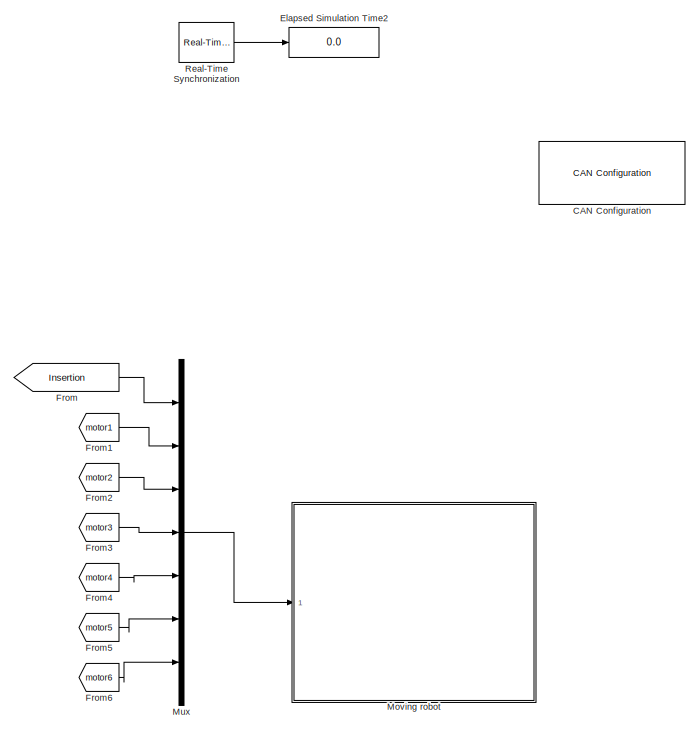
[diagram: root canvas - part 1/3, top right region]
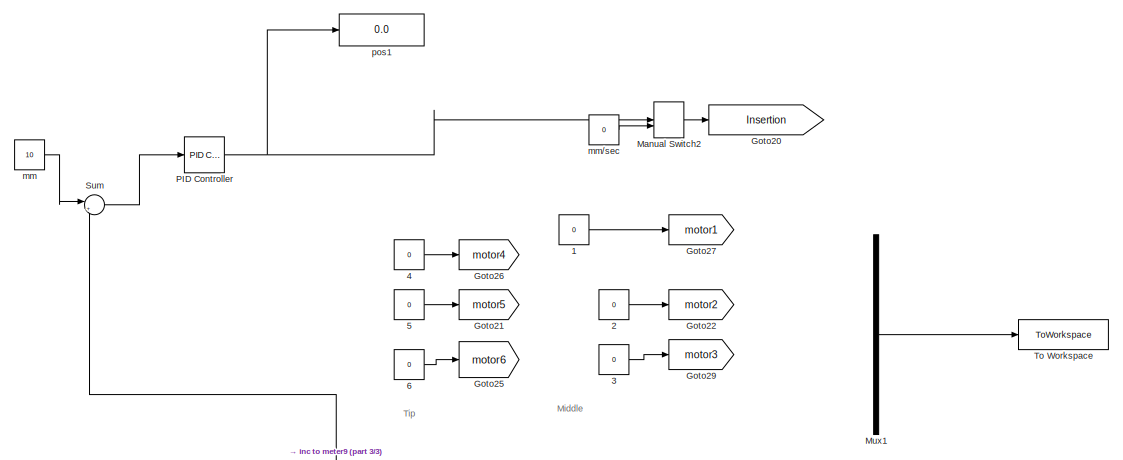
[diagram: root canvas - part 2/3, central region]
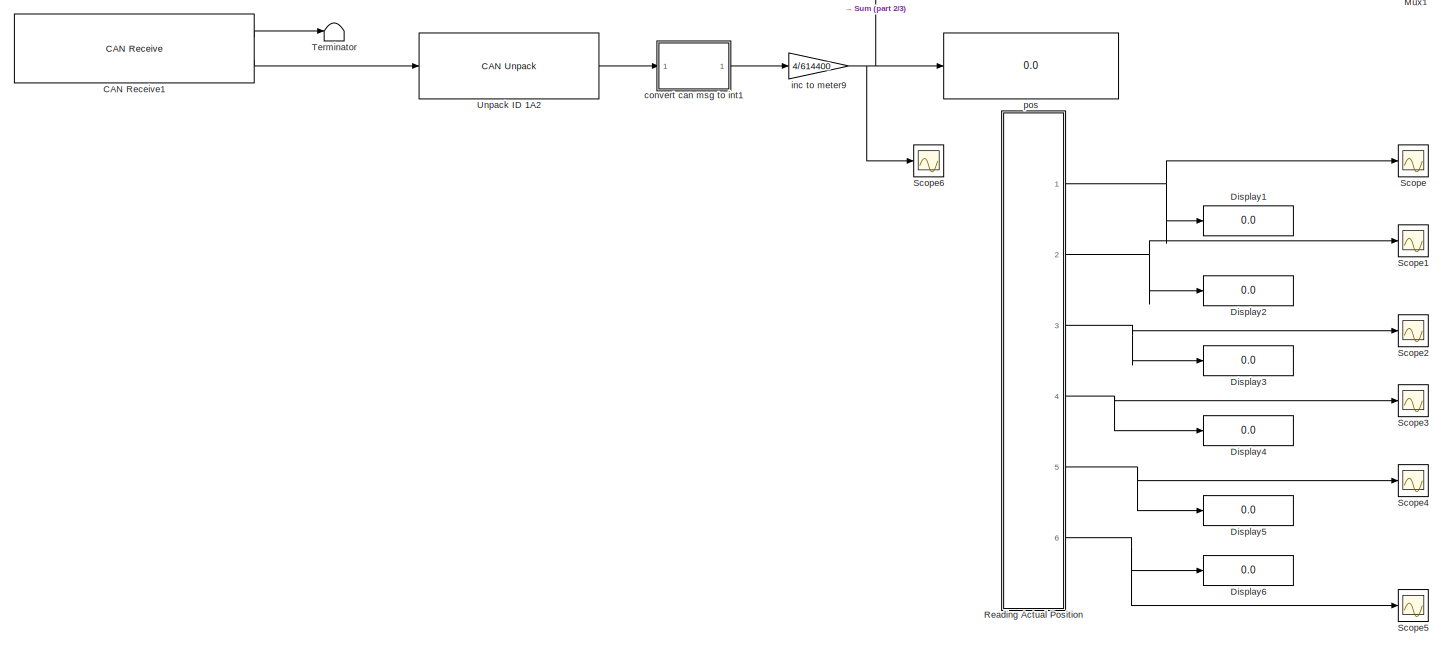
[diagram: root canvas - part 3/3, bottom left region]
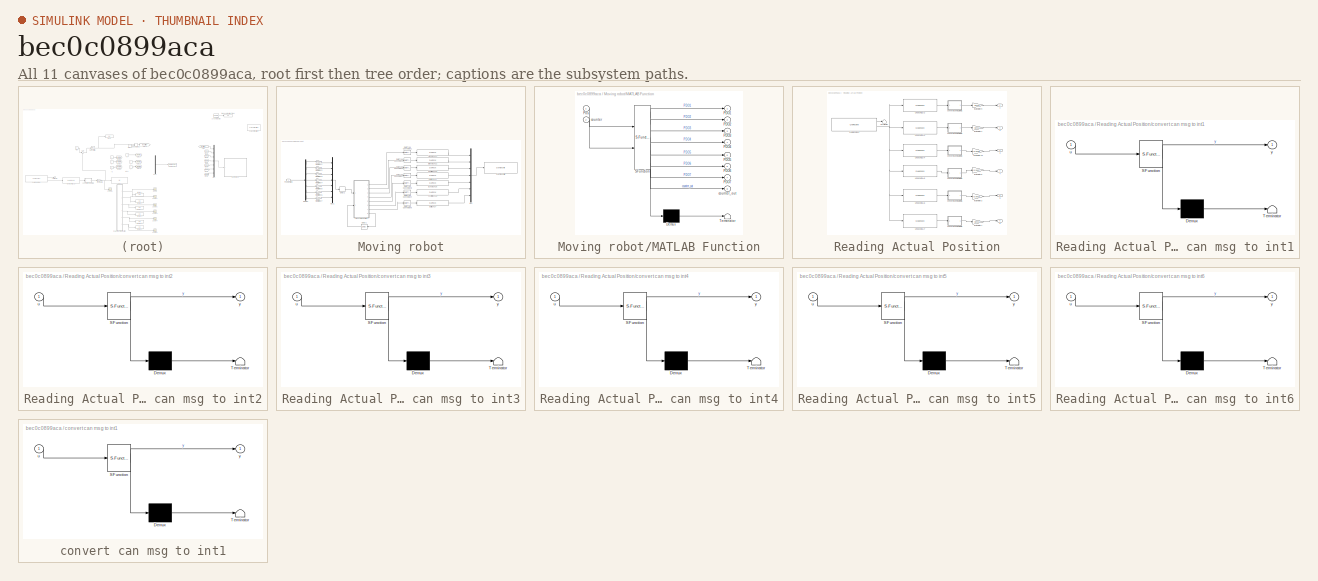
[diagram: thumbnail index - all 11 canvases of the model, root first then tree order]
MODEL slx_bec0c0899aca
KIND model
CONFIG AbsTol = auto
CONFIG EnableMultiTasking = off
CONFIG FixedStep = 0.01
CONFIG MaxStep = auto
CONFIG MinStep = auto
CONFIG RelTol = 1e-3
CONFIG SampleTimeConstraint = Unconstrained
CONFIG Solver = FixedStepAuto
CONFIG SolverName = FixedStepAuto
CONFIG StartTime = 0.0
CONFIG StopTime = inf
BLOCK [Constant] 1
  Value = 0
BLOCK [Constant] 2
  Value = 0
BLOCK [Constant] 3
  Value = 0
BLOCK [Constant] 4
  Value = 0
BLOCK [Constant] 5
  Value = 0
BLOCK [Constant] 6
  Value = 0
BLOCK [Reference] CAN Configuration  REF=canlib/CAN Configuration
  Ports = []
  SourceBlock = canlib/CAN Configuration
  SourceProductBaseCode = VN
  SourceProductName = Vehicle Network Toolbox
  SourceType = CAN Configuration
BLOCK [Reference] CAN Receive1  REF=canlib/CAN Receive
  Ports = [0, 2]
  SourceBlock = canlib/CAN Receive
  SourceProductBaseCode = VN
  SourceProductName = Vehicle Network Toolbox
  SourceType = CAN Receive
BLOCK [Display] Display1
  Decimation = 1
  Ports = [1]
BLOCK [Display] Display2
  Decimation = 1
  Ports = [1]
BLOCK [Display] Display3
  Decimation = 1
  Ports = [1]
BLOCK [Display] Display4
  Decimation = 1
  Ports = [1]
BLOCK [Display] Display5
  Decimation = 1
  Ports = [1]
BLOCK [Display] Display6
  Decimation = 1
  Ports = [1]
BLOCK [Display] Elapsed Simulation Time2
  Decimation = 2
  Ports = [1]
BLOCK [From] From
  GotoTag = Insertion
BLOCK [From] From1
  GotoTag = motor1
BLOCK [From] From2
  GotoTag = motor2
BLOCK [From] From3
  GotoTag = motor3
BLOCK [From] From4
  GotoTag = motor4
BLOCK [From] From5
  GotoTag = motor5
BLOCK [From] From6
  GotoTag = motor6
BLOCK [Goto] Goto20
  GotoTag = Insertion
BLOCK [Goto] Goto21
  GotoTag = motor5
BLOCK [Goto] Goto22
  GotoTag = motor2
BLOCK [Goto] Goto25
  GotoTag = motor6
BLOCK [Goto] Goto26
  GotoTag = motor4
BLOCK [Goto] Goto27
  GotoTag = motor1
BLOCK [Goto] Goto29
  GotoTag = motor3
BLOCK [ManualSwitch] Manual Switch2
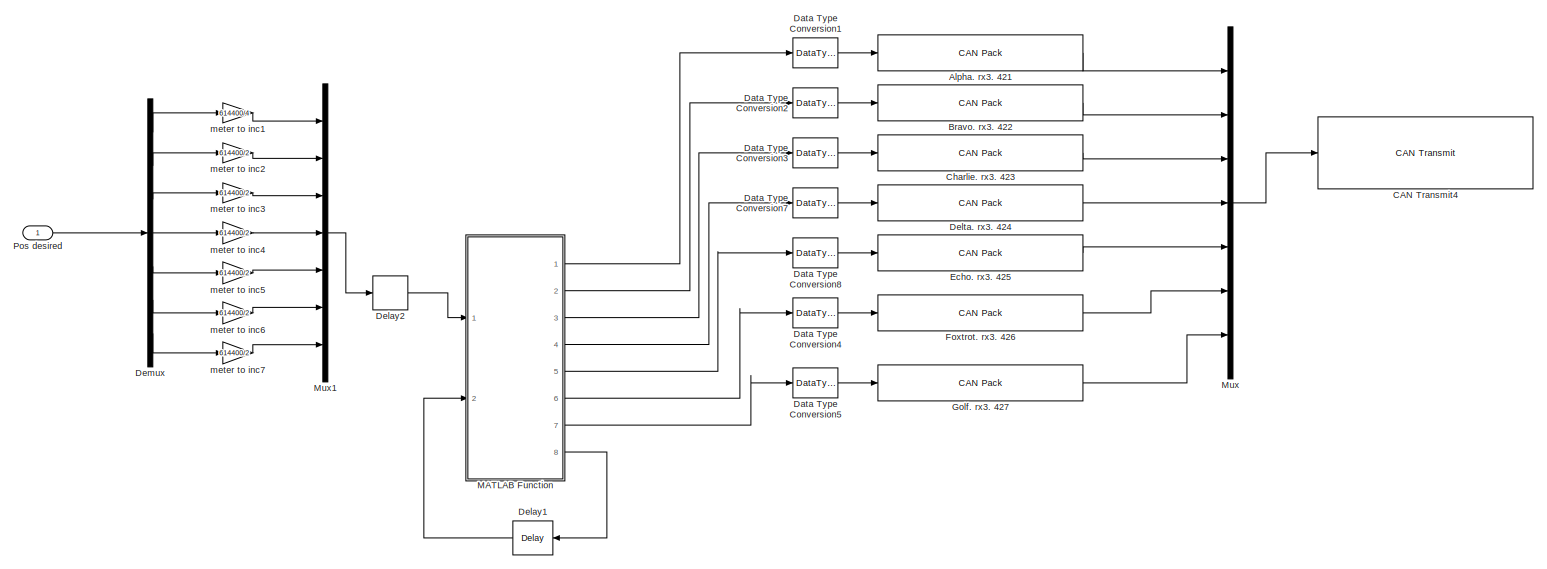
[diagram: Moving robot - part 1/1, most of the canvas]
BLOCK [SubSystem] Moving robot
  Ports = [1]
  RequestExecContextInheritance = off
BLOCK [Reference] Moving robot/Alpha. rx3. 421  REF=canmsglib/CAN Pack
  Ports = [1, 1]
  SourceBlock = canmsglib/CAN Pack
  SourceProductBaseCode = XP
  SourceProductName = Simulink Real-Time
  SourceType = CAN Pack
BLOCK [Reference] Moving robot/Bravo. rx3. 422  REF=canmsglib/CAN Pack
  Ports = [1, 1]
  SourceBlock = canmsglib/CAN Pack
  SourceProductBaseCode = XP
  SourceProductName = Simulink Real-Time
  SourceType = CAN Pack
BLOCK [Reference] Moving robot/CAN Transmit4  REF=canlib/CAN Transmit
  Ports = [1]
  SourceBlock = canlib/CAN Transmit
  SourceProductBaseCode = VN
  SourceProductName = Vehicle Network Toolbox
  SourceType = CAN Transmit
BLOCK [Reference] Moving robot/Charlie. rx3. 423  REF=canmsglib/CAN Pack
  Ports = [1, 1]
  SourceBlock = canmsglib/CAN Pack
  SourceProductBaseCode = XP
  SourceProductName = Simulink Real-Time
  SourceType = CAN Pack
BLOCK [DataTypeConversion] Moving robot/Data Type Conversion1
  RndMeth = Floor
  SaturateOnIntegerOverflow = off
BLOCK [DataTypeConversion] Moving robot/Data Type Conversion2
  RndMeth = Floor
  SaturateOnIntegerOverflow = off
BLOCK [DataTypeConversion] Moving robot/Data Type Conversion3
  RndMeth = Floor
  SaturateOnIntegerOverflow = off
BLOCK [DataTypeConversion] Moving robot/Data Type Conversion4
  RndMeth = Floor
  SaturateOnIntegerOverflow = off
BLOCK [DataTypeConversion] Moving robot/Data Type Conversion5
  RndMeth = Floor
  SaturateOnIntegerOverflow = off
BLOCK [DataTypeConversion] Moving robot/Data Type Conversion7
  RndMeth = Floor
  SaturateOnIntegerOverflow = off
BLOCK [DataTypeConversion] Moving robot/Data Type Conversion8
  RndMeth = Floor
  SaturateOnIntegerOverflow = off
BLOCK [Delay] Moving robot/Delay1
  DelayLength = 1
  InitialCondition = 0
  InputPortMap = u0
  Ports = [1, 1]
BLOCK [Delay] Moving robot/Delay2
  DelayLength = 1
  InitialCondition = [ 0 0 0 0 0 0 0]
  InputPortMap = u0
  Ports = [1, 1]
BLOCK [Reference] Moving robot/Delta. rx3. 424  REF=canmsglib/CAN Pack
  Ports = [1, 1]
  SourceBlock = canmsglib/CAN Pack
  SourceProductBaseCode = XP
  SourceProductName = Simulink Real-Time
  SourceType = CAN Pack
BLOCK [Demux] Moving robot/Demux
  DisplayOption = bar
  Outputs = 7
  Ports = [1, 7]
BLOCK [Reference] Moving robot/Echo. rx3. 425  REF=canmsglib/CAN Pack
  Ports = [1, 1]
  SourceBlock = canmsglib/CAN Pack
  SourceProductBaseCode = XP
  SourceProductName = Simulink Real-Time
  SourceType = CAN Pack
BLOCK [Reference] Moving robot/Foxtrot. rx3. 426  REF=canmsglib/CAN Pack
  Ports = [1, 1]
  SourceBlock = canmsglib/CAN Pack
  SourceProductBaseCode = XP
  SourceProductName = Simulink Real-Time
  SourceType = CAN Pack
BLOCK [Reference] Moving robot/Golf. rx3. 427  REF=canmsglib/CAN Pack
  Ports = [1, 1]
  SourceBlock = canmsglib/CAN Pack
  SourceProductBaseCode = XP
  SourceProductName = Simulink Real-Time
  SourceType = CAN Pack
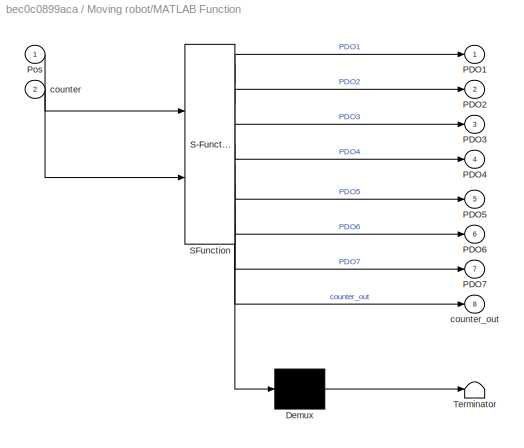
BLOCK [SubSystem] Moving robot/MATLAB Function
  ErrorFcn = Stateflow.Translate.translate
  PermitHierarchicalResolution = ExplicitOnly
  Ports = [2, 8]
  RequestExecContextInheritance = off
  SFBlockType = MATLAB Function
  TreatAsAtomicUnit = on
BLOCK [Demux] Moving robot/MATLAB Function/ Demux 
  Outputs = 1
  Ports = [1, 1]
BLOCK [S-Function] Moving robot/MATLAB Function/ SFunction 
  EnableBusSupport = on
  FunctionName = sf_sfun
  PortCounts = [2 9]
  Ports = [2, 9]
  SFcnIsStateOwnerBlock = off
  SFunctionDeploymentMode = off
  Tag = Stateflow S-Function 2
BLOCK [Terminator] Moving robot/MATLAB Function/ Terminator 
BLOCK [Outport] Moving robot/MATLAB Function/PDO1
  IconDisplay = Port number
  VectorParamsAs1DForOutWhenUnconnected = off
BLOCK [Outport] Moving robot/MATLAB Function/PDO2
  IconDisplay = Port number
  Port = 2
  VectorParamsAs1DForOutWhenUnconnected = off
BLOCK [Outport] Moving robot/MATLAB Function/PDO3
  IconDisplay = Port number
  Port = 3
  VectorParamsAs1DForOutWhenUnconnected = off
BLOCK [Outport] Moving robot/MATLAB Function/PDO4
  IconDisplay = Port number
  Port = 4
  VectorParamsAs1DForOutWhenUnconnected = off
BLOCK [Outport] Moving robot/MATLAB Function/PDO5
  IconDisplay = Port number
  Port = 5
  VectorParamsAs1DForOutWhenUnconnected = off
BLOCK [Outport] Moving robot/MATLAB Function/PDO6
  IconDisplay = Port number
  Port = 6
  VectorParamsAs1DForOutWhenUnconnected = off
BLOCK [Outport] Moving robot/MATLAB Function/PDO7
  IconDisplay = Port number
  Port = 7
BLOCK [Inport] Moving robot/MATLAB Function/Pos
  IconDisplay = Port number
BLOCK [Inport] Moving robot/MATLAB Function/counter
  IconDisplay = Port number
  Port = 2
BLOCK [Outport] Moving robot/MATLAB Function/counter_out
  IconDisplay = Port number
  Port = 8
  VectorParamsAs1DForOutWhenUnconnected = off
BLOCK [Mux] Moving robot/Mux
  DisplayOption = bar
  Inputs = 7
  Ports = [7, 1]
BLOCK [Mux] Moving robot/Mux1
  DisplayOption = bar
  Inputs = 7
  Ports = [7, 1]
BLOCK [Inport] Moving robot/Pos desired
  IconDisplay = Port number
BLOCK [Gain] Moving robot/meter to inc1
  Gain = 614400/4
  OutDataTypeStr = Inherit: Inherit via internal rule
  ParamDataTypeStr = Inherit: Inherit via internal rule
  SaturateOnIntegerOverflow = off
BLOCK [Gain] Moving robot/meter to inc2
  Gain = 614400/2
  OutDataTypeStr = Inherit: Inherit via internal rule
  ParamDataTypeStr = Inherit: Inherit via internal rule
  SaturateOnIntegerOverflow = off
BLOCK [Gain] Moving robot/meter to inc3
  Gain = 614400/2
  OutDataTypeStr = Inherit: Inherit via internal rule
  ParamDataTypeStr = Inherit: Inherit via internal rule
  SaturateOnIntegerOverflow = off
BLOCK [Gain] Moving robot/meter to inc4
  Gain = 614400/2
  OutDataTypeStr = Inherit: Inherit via internal rule
  ParamDataTypeStr = Inherit: Inherit via internal rule
  SaturateOnIntegerOverflow = off
BLOCK [Gain] Moving robot/meter to inc5
  Gain = 614400/2
  OutDataTypeStr = Inherit: Inherit via internal rule
  ParamDataTypeStr = Inherit: Inherit via internal rule
  SaturateOnIntegerOverflow = off
BLOCK [Gain] Moving robot/meter to inc6
  Gain = 614400/2
  OutDataTypeStr = Inherit: Inherit via internal rule
  ParamDataTypeStr = Inherit: Inherit via internal rule
  SaturateOnIntegerOverflow = off
BLOCK [Gain] Moving robot/meter to inc7
  Gain = 614400/2
  OutDataTypeStr = Inherit: Inherit via internal rule
  ParamDataTypeStr = Inherit: Inherit via internal rule
  SaturateOnIntegerOverflow = off
BLOCK [Mux] Mux
  DisplayOption = bar
  Inputs = 7
  Ports = [7, 1]
BLOCK [Mux] Mux1
  DisplayOption = bar
  Inputs = 9
  Ports = [9, 1]
BLOCK [Reference] PID Controller  REF=simulink/Continuous/PID Controller
  Ports = [1, 1]
  SourceBlock = simulink/Continuous/PID Controller
  SourceProductBaseCode = SL
  SourceProductName = Simulink
  SourceType = PID 1dof
BLOCK [SubSystem] Reading Actual Position
  Ports = [0, 6]
  RequestExecContextInheritance = off
BLOCK [Outport] Reading Actual Position/1
  IconDisplay = Port number
  VectorParamsAs1DForOutWhenUnconnected = off
BLOCK [Outport] Reading Actual Position/2
  IconDisplay = Port number
  Port = 2
  VectorParamsAs1DForOutWhenUnconnected = off
BLOCK [Outport] Reading Actual Position/3
  IconDisplay = Port number
  Port = 3
  VectorParamsAs1DForOutWhenUnconnected = off
BLOCK [Outport] Reading Actual Position/4
  IconDisplay = Port number
  Port = 4
  VectorParamsAs1DForOutWhenUnconnected = off
BLOCK [Outport] Reading Actual Position/5
  IconDisplay = Port number
  Port = 5
  VectorParamsAs1DForOutWhenUnconnected = off
BLOCK [Outport] Reading Actual Position/6
  IconDisplay = Port number
  Port = 6
  VectorParamsAs1DForOutWhenUnconnected = off
BLOCK [Reference] Reading Actual Position/CAN Receive1  REF=canlib/CAN Receive
  Ports = [0, 2]
  SourceBlock = canlib/CAN Receive
  SourceProductBaseCode = VN
  SourceProductName = Vehicle Network Toolbox
  SourceType = CAN Receive
BLOCK [Terminator] Reading Actual Position/Terminator
BLOCK [Reference] Reading Actual Position/Unpack ID 1A2  REF=canmsglib/CAN Unpack
  Ports = [1, 1]
  SourceBlock = canmsglib/CAN Unpack
  SourceProductBaseCode = XP
  SourceProductName = Simulink Real-Time
  SourceType = CAN Unpack
BLOCK [Reference] Reading Actual Position/Unpack ID 1A3  REF=canmsglib/CAN Unpack
  Ports = [1, 1]
  SourceBlock = canmsglib/CAN Unpack
  SourceProductBaseCode = XP
  SourceProductName = Simulink Real-Time
  SourceType = CAN Unpack
BLOCK [Reference] Reading Actual Position/Unpack ID 1A4  REF=canmsglib/CAN Unpack
  Ports = [1, 1]
  SourceBlock = canmsglib/CAN Unpack
  SourceProductBaseCode = XP
  SourceProductName = Simulink Real-Time
  SourceType = CAN Unpack
BLOCK [Reference] Reading Actual Position/Unpack ID 1A5  REF=canmsglib/CAN Unpack
  Ports = [1, 1]
  SourceBlock = canmsglib/CAN Unpack
  SourceProductBaseCode = XP
  SourceProductName = Simulink Real-Time
  SourceType = CAN Unpack
BLOCK [Reference] Reading Actual Position/Unpack ID 1A6  REF=canmsglib/CAN Unpack
  Ports = [1, 1]
  SourceBlock = canmsglib/CAN Unpack
  SourceProductBaseCode = XP
  SourceProductName = Simulink Real-Time
  SourceType = CAN Unpack
BLOCK [Reference] Reading Actual Position/Unpack ID 1A7  REF=canmsglib/CAN Unpack
  Ports = [1, 1]
  SourceBlock = canmsglib/CAN Unpack
  SourceProductBaseCode = XP
  SourceProductName = Simulink Real-Time
  SourceType = CAN Unpack
BLOCK [SubSystem] Reading Actual Position/convert can msg to int1
  ErrorFcn = Stateflow.Translate.translate
  PermitHierarchicalResolution = ExplicitOnly
  Ports = [1, 1]
  RequestExecContextInheritance = off
  SFBlockType = MATLAB Function
  TreatAsAtomicUnit = on
BLOCK [Demux] Reading Actual Position/convert can msg to int1/ Demux 
  Outputs = 1
  Ports = [1, 1]
BLOCK [S-Function] Reading Actual Position/convert can msg to int1/ SFunction 
  EnableBusSupport = on
  FunctionName = sf_sfun
  PortCounts = [1 2]
  Ports = [1, 2]
  SFcnIsStateOwnerBlock = off
  SFunctionDeploymentMode = off
  Tag = Stateflow S-Function 1
BLOCK [Terminator] Reading Actual Position/convert can msg to int1/ Terminator 
BLOCK [Inport] Reading Actual Position/convert can msg to int1/u
  IconDisplay = Port number
BLOCK [Outport] Reading Actual Position/convert can msg to int1/y
  IconDisplay = Port number
  VectorParamsAs1DForOutWhenUnconnected = off
BLOCK [SubSystem] Reading Actual Position/convert can msg to int2
  ErrorFcn = Stateflow.Translate.translate
  PermitHierarchicalResolution = ExplicitOnly
  Ports = [1, 1]
  RequestExecContextInheritance = off
  SFBlockType = MATLAB Function
  TreatAsAtomicUnit = on
BLOCK [Demux] Reading Actual Position/convert can msg to int2/ Demux 
  Outputs = 1
  Ports = [1, 1]
BLOCK [S-Function] Reading Actual Position/convert can msg to int2/ SFunction 
  EnableBusSupport = on
  FunctionName = sf_sfun
  PortCounts = [1 2]
  Ports = [1, 2]
  SFcnIsStateOwnerBlock = off
  SFunctionDeploymentMode = off
  Tag = Stateflow S-Function 3
BLOCK [Terminator] Reading Actual Position/convert can msg to int2/ Terminator 
BLOCK [Inport] Reading Actual Position/convert can msg to int2/u
  IconDisplay = Port number
BLOCK [Outport] Reading Actual Position/convert can msg to int2/y
  IconDisplay = Port number
  VectorParamsAs1DForOutWhenUnconnected = off
BLOCK [SubSystem] Reading Actual Position/convert can msg to int3
  ErrorFcn = Stateflow.Translate.translate
  PermitHierarchicalResolution = ExplicitOnly
  Ports = [1, 1]
  RequestExecContextInheritance = off
  SFBlockType = MATLAB Function
  TreatAsAtomicUnit = on
BLOCK [Demux] Reading Actual Position/convert can msg to int3/ Demux 
  Outputs = 1
  Ports = [1, 1]
BLOCK [S-Function] Reading Actual Position/convert can msg to int3/ SFunction 
  EnableBusSupport = on
  FunctionName = sf_sfun
  PortCounts = [1 2]
  Ports = [1, 2]
  SFcnIsStateOwnerBlock = off
  SFunctionDeploymentMode = off
  Tag = Stateflow S-Function 4
BLOCK [Terminator] Reading Actual Position/convert can msg to int3/ Terminator 
BLOCK [Inport] Reading Actual Position/convert can msg to int3/u
  IconDisplay = Port number
BLOCK [Outport] Reading Actual Position/convert can msg to int3/y
  IconDisplay = Port number
  VectorParamsAs1DForOutWhenUnconnected = off
BLOCK [SubSystem] Reading Actual Position/convert can msg to int4
  ErrorFcn = Stateflow.Translate.translate
  PermitHierarchicalResolution = ExplicitOnly
  Ports = [1, 1]
  RequestExecContextInheritance = off
  SFBlockType = MATLAB Function
  TreatAsAtomicUnit = on
BLOCK [Demux] Reading Actual Position/convert can msg to int4/ Demux 
  Outputs = 1
  Ports = [1, 1]
BLOCK [S-Function] Reading Actual Position/convert can msg to int4/ SFunction 
  EnableBusSupport = on
  FunctionName = sf_sfun
  PortCounts = [1 2]
  Ports = [1, 2]
  SFcnIsStateOwnerBlock = off
  SFunctionDeploymentMode = off
  Tag = Stateflow S-Function 5
BLOCK [Terminator] Reading Actual Position/convert can msg to int4/ Terminator 
BLOCK [Inport] Reading Actual Position/convert can msg to int4/u
  IconDisplay = Port number
BLOCK [Outport] Reading Actual Position/convert can msg to int4/y
  IconDisplay = Port number
  VectorParamsAs1DForOutWhenUnconnected = off
BLOCK [SubSystem] Reading Actual Position/convert can msg to int5
  ErrorFcn = Stateflow.Translate.translate
  PermitHierarchicalResolution = ExplicitOnly
  Ports = [1, 1]
  RequestExecContextInheritance = off
  SFBlockType = MATLAB Function
  TreatAsAtomicUnit = on
BLOCK [Demux] Reading Actual Position/convert can msg to int5/ Demux 
  Outputs = 1
  Ports = [1, 1]
BLOCK [S-Function] Reading Actual Position/convert can msg to int5/ SFunction 
  EnableBusSupport = on
  FunctionName = sf_sfun
  PortCounts = [1 2]
  Ports = [1, 2]
  SFcnIsStateOwnerBlock = off
  SFunctionDeploymentMode = off
  Tag = Stateflow S-Function 6
BLOCK [Terminator] Reading Actual Position/convert can msg to int5/ Terminator 
BLOCK [Inport] Reading Actual Position/convert can msg to int5/u
  IconDisplay = Port number
BLOCK [Outport] Reading Actual Position/convert can msg to int5/y
  IconDisplay = Port number
  VectorParamsAs1DForOutWhenUnconnected = off
BLOCK [SubSystem] Reading Actual Position/convert can msg to int6
  ErrorFcn = Stateflow.Translate.translate
  PermitHierarchicalResolution = ExplicitOnly
  Ports = [1, 1]
  RequestExecContextInheritance = off
  SFBlockType = MATLAB Function
  TreatAsAtomicUnit = on
BLOCK [Demux] Reading Actual Position/convert can msg to int6/ Demux 
  Outputs = 1
  Ports = [1, 1]
BLOCK [S-Function] Reading Actual Position/convert can msg to int6/ SFunction 
  EnableBusSupport = on
  FunctionName = sf_sfun
  PortCounts = [1 2]
  Ports = [1, 2]
  SFcnIsStateOwnerBlock = off
  SFunctionDeploymentMode = off
  Tag = Stateflow S-Function 7
BLOCK [Terminator] Reading Actual Position/convert can msg to int6/ Terminator 
BLOCK [Inport] Reading Actual Position/convert can msg to int6/u
  IconDisplay = Port number
BLOCK [Outport] Reading Actual Position/convert can msg to int6/y
  IconDisplay = Port number
  VectorParamsAs1DForOutWhenUnconnected = off
BLOCK [Gain] Reading Actual Position/inc to meter1
  Gain = 0.0412
  OutDataTypeStr = Inherit: Inherit via internal rule
  ParamDataTypeStr = Inherit: Inherit via internal rule
  SaturateOnIntegerOverflow = off
BLOCK [Gain] Reading Actual Position/inc to meter10
  Gain = 0.0418
  OutDataTypeStr = Inherit: Inherit via internal rule
  ParamDataTypeStr = Inherit: Inherit via internal rule
  SaturateOnIntegerOverflow = off
BLOCK [Gain] Reading Actual Position/inc to meter3
  Gain = 0.0413
  OutDataTypeStr = Inherit: Inherit via internal rule
  ParamDataTypeStr = Inherit: Inherit via internal rule
  SaturateOnIntegerOverflow = off
BLOCK [Gain] Reading Actual Position/inc to meter6
  Gain = 0.0447
  OutDataTypeStr = Inherit: Inherit via internal rule
  ParamDataTypeStr = Inherit: Inherit via internal rule
  SaturateOnIntegerOverflow = off
BLOCK [Gain] Reading Actual Position/inc to meter7
  Gain = 0.0413
  OutDataTypeStr = Inherit: Inherit via internal rule
  ParamDataTypeStr = Inherit: Inherit via internal rule
  SaturateOnIntegerOverflow = off
BLOCK [Gain] Reading Actual Position/inc to meter9
  Gain = 0.0415
  OutDataTypeStr = Inherit: Inherit via internal rule
  ParamDataTypeStr = Inherit: Inherit via internal rule
  SaturateOnIntegerOverflow = off
BLOCK [Reference] Real-Time Synchronization  REF=sldrtlib/Real-Time
Synchronization
  Ports = [0, 1]
  SourceBlock = sldrtlib/Real-Time\nSynchronization
  SourceProductBaseCode = WT
  SourceProductName = Simulink Desktop Real-Time
  SourceType = Simulink Desktop Real-Time Synchronization
BLOCK [Scope] Scope
  Floating = off
  NumInputPorts = 1
  Ports = [1]
  ScopeSpecificationString = Simulink.scopes.TimeScopeBlockCfg('CurrentConfiguration', extmgr.ConfigurationSet(extmgr.Configuration('Core','General UI',true),extmgr.Configuration('Core','Source UI',true),extmgr.Configuration('Sources','WiredSimulink',true,'DataLoggingVariableName','ScopeData1'),extmgr.Configuration('Visuals','Time Domain',true,'SerializedDisplays',{struct('MinYLimReal','-1.00000','MaxYLimReal','1.00000','YLab...<+1472ch>
BLOCK [Scope] Scope1
  Floating = off
  NumInputPorts = 1
  Ports = [1]
  ScopeSpecificationString = Simulink.scopes.TimeScopeBlockCfg('CurrentConfiguration', extmgr.ConfigurationSet(extmgr.Configuration('Core','General UI',true),extmgr.Configuration('Core','Source UI',true),extmgr.Configuration('Sources','WiredSimulink',true,'DataLoggingVariableName','ScopeData2'),extmgr.Configuration('Visuals','Time Domain',true,'SerializedDisplays',{struct('MinYLimReal','-1.00000','MaxYLimReal','1.00000','YLab...<+1472ch>
BLOCK [Scope] Scope2
  Floating = off
  NumInputPorts = 1
  Ports = [1]
  ScopeSpecificationString = Simulink.scopes.TimeScopeBlockCfg('CurrentConfiguration', extmgr.ConfigurationSet(extmgr.Configuration('Core','General UI',true),extmgr.Configuration('Core','Source UI',true),extmgr.Configuration('Sources','WiredSimulink',true,'DataLoggingVariableName','ScopeData3'),extmgr.Configuration('Visuals','Time Domain',true,'SerializedDisplays',{struct('MinYLimReal','-1.00000','MaxYLimReal','1.00000','YLab...<+1444ch>
BLOCK [Scope] Scope3
  Floating = off
  NumInputPorts = 1
  Ports = [1]
  ScopeSpecificationString = Simulink.scopes.TimeScopeBlockCfg('CurrentConfiguration', extmgr.ConfigurationSet(extmgr.Configuration('Core','General UI',true),extmgr.Configuration('Core','Source UI',true),extmgr.Configuration('Sources','WiredSimulink',true,'DataLoggingVariableName','ScopeData4'),extmgr.Configuration('Visuals','Time Domain',true,'SerializedDisplays',{struct('MinYLimReal','-1.00000','MaxYLimReal','1.00000','YLab...<+1444ch>
BLOCK [Scope] Scope4
  Floating = off
  NumInputPorts = 1
  Ports = [1]
  ScopeSpecificationString = Simulink.scopes.TimeScopeBlockCfg('CurrentConfiguration', extmgr.ConfigurationSet(extmgr.Configuration('Core','General UI',true),extmgr.Configuration('Core','Source UI',true),extmgr.Configuration('Sources','WiredSimulink',true,'DataLoggingVariableName','ScopeData5'),extmgr.Configuration('Visuals','Time Domain',true,'SerializedDisplays',{struct('MinYLimReal','-319.75','MaxYLimReal','2877.75','YLabe...<+1437ch>
BLOCK [Scope] Scope5
  Floating = off
  NumInputPorts = 1
  Ports = [1]
  ScopeSpecificationString = Simulink.scopes.TimeScopeBlockCfg('CurrentConfiguration', extmgr.ConfigurationSet(extmgr.Configuration('Core','General UI',true),extmgr.Configuration('Core','Source UI',true),extmgr.Configuration('Sources','WiredSimulink',true),extmgr.Configuration('Visuals','Time Domain',true,'SerializedDisplays',{struct('MinYLimReal','2640.25','MaxYLimReal','2647.75','YLabelReal','','MinYLimMag','2640.25','MaxYL...<+1396ch>
BLOCK [Scope] Scope6
  Floating = off
  NumInputPorts = 1
  Ports = [1]
  ScopeSpecificationString = Simulink.scopes.TimeScopeBlockCfg('CurrentConfiguration', extmgr.ConfigurationSet(extmgr.Configuration('Core','General UI',true),extmgr.Configuration('Core','Source UI',true),extmgr.Configuration('Sources','WiredSimulink',true,'DataLoggingVariableName','ScopeData1'),extmgr.Configuration('Visuals','Time Domain',true,'SerializedDisplays',{struct('MinYLimReal','10.01436','MaxYLimReal','10.07121','YLa...<+1457ch>
BLOCK [Sum] Sum
  IconShape = round
  InputSameDT = off
  Inputs = |+-
  OutDataTypeStr = Inherit: Inherit via internal rule
  Ports = [2, 1]
  SaturateOnIntegerOverflow = off
BLOCK [Terminator] Terminator
BLOCK [ToWorkspace] To Workspace
  FixptAsFi = on
  MaxDataPoints = inf
  Ports = [1]
  SampleTime = -1
  SaveFormat = Structure With Time
  VariableName = data
BLOCK [Reference] Unpack ID 1A2  REF=canmsglib/CAN Unpack
  Ports = [1, 1]
  SourceBlock = canmsglib/CAN Unpack
  SourceProductBaseCode = XP
  SourceProductName = Simulink Real-Time
  SourceType = CAN Unpack
BLOCK [SubSystem] convert can msg to int1
  ErrorFcn = Stateflow.Translate.translate
  PermitHierarchicalResolution = ExplicitOnly
  Ports = [1, 1]
  RequestExecContextInheritance = off
  SFBlockType = MATLAB Function
  TreatAsAtomicUnit = on
BLOCK [Demux] convert can msg to int1/ Demux 
  Outputs = 1
  Ports = [1, 1]
BLOCK [S-Function] convert can msg to int1/ SFunction 
  EnableBusSupport = on
  FunctionName = sf_sfun
  PortCounts = [1 2]
  Ports = [1, 2]
  SFcnIsStateOwnerBlock = off
  SFunctionDeploymentMode = off
  Tag = Stateflow S-Function 9
BLOCK [Terminator] convert can msg to int1/ Terminator 
BLOCK [Inport] convert can msg to int1/u
  IconDisplay = Port number
BLOCK [Outport] convert can msg to int1/y
  IconDisplay = Port number
  VectorParamsAs1DForOutWhenUnconnected = off
BLOCK [Gain] inc to meter9
  Gain = 4/614400
  OutDataTypeStr = Inherit: Inherit via internal rule
  ParamDataTypeStr = Inherit: Inherit via internal rule
  SaturateOnIntegerOverflow = off
BLOCK [Constant] mm
  Value = 10
BLOCK [Constant] mm//sec
  Value = 0
BLOCK [Display] pos
  Decimation = 1
  Ports = [1]
BLOCK [Display] pos1
  Decimation = 1
  Ports = [1]
ANNOTATION (root): Middle
ANNOTATION (root): Tip
LINE 1:1 -> Goto27:1
LINE 2:1 -> Goto22:1
LINE 3:1 -> Goto29:1
LINE 4:1 -> Goto26:1
LINE 5:1 -> Goto21:1
LINE 6:1 -> Goto25:1
LINE CAN Receive1:1 -> Terminator:1
LINE CAN Receive1:2 -> Unpack ID 1A2:1
LINE From1:1 -> Mux:2
LINE From2:1 -> Mux:3
LINE From3:1 -> Mux:4
LINE From4:1 -> Mux:5
LINE From5:1 -> Mux:6
LINE From6:1 -> Mux:7
LINE From:1 -> Mux:1
LINE Manual Switch2:1 -> Goto20:1
LINE Moving robot/Alpha. rx3. 421:1 -> Moving robot/Mux:1
LINE Moving robot/Bravo. rx3. 422:1 -> Moving robot/Mux:2
LINE Moving robot/Charlie. rx3. 423:1 -> Moving robot/Mux:3
LINE Moving robot/Data Type Conversion1:1 -> Moving robot/Alpha. rx3. 421:1
LINE Moving robot/Data Type Conversion2:1 -> Moving robot/Bravo. rx3. 422:1
LINE Moving robot/Data Type Conversion3:1 -> Moving robot/Charlie. rx3. 423:1
LINE Moving robot/Data Type Conversion4:1 -> Moving robot/Foxtrot. rx3. 426:1
LINE Moving robot/Data Type Conversion5:1 -> Moving robot/Golf. rx3. 427:1
LINE Moving robot/Data Type Conversion7:1 -> Moving robot/Delta. rx3. 424:1
LINE Moving robot/Data Type Conversion8:1 -> Moving robot/Echo. rx3. 425:1
LINE Moving robot/Delay1:1 -> Moving robot/MATLAB Function:2
LINE Moving robot/Delay2:1 -> Moving robot/MATLAB Function:1
LINE Moving robot/Delta. rx3. 424:1 -> Moving robot/Mux:4
LINE Moving robot/Demux:1 -> Moving robot/meter to inc1:1
LINE Moving robot/Demux:2 -> Moving robot/meter to inc2:1
LINE Moving robot/Demux:3 -> Moving robot/meter to inc3:1
LINE Moving robot/Demux:4 -> Moving robot/meter to inc4:1
LINE Moving robot/Demux:5 -> Moving robot/meter to inc5:1
LINE Moving robot/Demux:6 -> Moving robot/meter to inc6:1
LINE Moving robot/Demux:7 -> Moving robot/meter to inc7:1
LINE Moving robot/Echo. rx3. 425:1 -> Moving robot/Mux:5
LINE Moving robot/Foxtrot. rx3. 426:1 -> Moving robot/Mux:6
LINE Moving robot/Golf. rx3. 427:1 -> Moving robot/Mux:7
LINE Moving robot/MATLAB Function:1 -> Moving robot/Data Type Conversion1:1
LINE Moving robot/MATLAB Function:2 -> Moving robot/Data Type Conversion2:1
LINE Moving robot/MATLAB Function:3 -> Moving robot/Data Type Conversion3:1
LINE Moving robot/MATLAB Function:4 -> Moving robot/Data Type Conversion7:1
LINE Moving robot/MATLAB Function:5 -> Moving robot/Data Type Conversion8:1
LINE Moving robot/MATLAB Function:6 -> Moving robot/Data Type Conversion4:1
LINE Moving robot/MATLAB Function:7 -> Moving robot/Data Type Conversion5:1
LINE Moving robot/MATLAB Function:8 -> Moving robot/Delay1:1
LINE Moving robot/Mux1:1 -> Moving robot/Delay2:1
LINE Moving robot/Mux:1 -> Moving robot/CAN Transmit4:1
LINE Moving robot/Pos desired:1 -> Moving robot/Demux:1
LINE Moving robot/meter to inc1:1 -> Moving robot/Mux1:1
LINE Moving robot/meter to inc2:1 -> Moving robot/Mux1:2
LINE Moving robot/meter to inc3:1 -> Moving robot/Mux1:3
LINE Moving robot/meter to inc4:1 -> Moving robot/Mux1:4
LINE Moving robot/meter to inc5:1 -> Moving robot/Mux1:5
LINE Moving robot/meter to inc6:1 -> Moving robot/Mux1:6
LINE Moving robot/meter to inc7:1 -> Moving robot/Mux1:7
LINE Mux1:1 -> To Workspace:1
LINE Mux:1 -> Moving robot:1
NET PID Controller:1 -> Manual Switch2:1, pos1:1
LINE Reading Actual Position/CAN Receive1:1 -> Reading Actual Position/Terminator:1
NET Reading Actual Position/CAN Receive1:2 -> Reading Actual Position/Unpack ID 1A2:1, Reading Actual Position/Unpack ID 1A3:1, Reading Actual Position/Unpack ID 1A4:1, Reading Actual Position/Unpack ID 1A5:1, Reading Actual Position/Unpack ID 1A6:1, Reading Actual Position/Unpack ID 1A7:1
LINE Reading Actual Position/Unpack ID 1A2:1 -> Reading Actual Position/convert can msg to int1:1
LINE Reading Actual Position/Unpack ID 1A3:1 -> Reading Actual Position/convert can msg to int2:1
LINE Reading Actual Position/Unpack ID 1A4:1 -> Reading Actual Position/convert can msg to int3:1
LINE Reading Actual Position/Unpack ID 1A5:1 -> Reading Actual Position/convert can msg to int4:1
LINE Reading Actual Position/Unpack ID 1A6:1 -> Reading Actual Position/convert can msg to int5:1
LINE Reading Actual Position/Unpack ID 1A7:1 -> Reading Actual Position/convert can msg to int6:1
LINE Reading Actual Position/convert can msg to int1:1 -> Reading Actual Position/inc to meter9:1
LINE Reading Actual Position/convert can msg to int2:1 -> Reading Actual Position/inc to meter1:1
LINE Reading Actual Position/convert can msg to int3:1 -> Reading Actual Position/inc to meter10:1
LINE Reading Actual Position/convert can msg to int4:1 -> Reading Actual Position/inc to meter6:1
LINE Reading Actual Position/convert can msg to int5:1 -> Reading Actual Position/inc to meter3:1
LINE Reading Actual Position/convert can msg to int6:1 -> Reading Actual Position/inc to meter7:1
LINE Reading Actual Position/inc to meter10:1 -> Reading Actual Position/3:1
LINE Reading Actual Position/inc to meter1:1 -> Reading Actual Position/2:1
LINE Reading Actual Position/inc to meter3:1 -> Reading Actual Position/5:1
LINE Reading Actual Position/inc to meter6:1 -> Reading Actual Position/4:1
LINE Reading Actual Position/inc to meter7:1 -> Reading Actual Position/6:1
LINE Reading Actual Position/inc to meter9:1 -> Reading Actual Position/1:1
NET Reading Actual Position:1 -> Display1:1, Scope:1
NET Reading Actual Position:2 -> Display2:1, Scope1:1
NET Reading Actual Position:3 -> Display3:1, Scope2:1
NET Reading Actual Position:4 -> Display4:1, Scope3:1
NET Reading Actual Position:5 -> Display5:1, Scope4:1
NET Reading Actual Position:6 -> Display6:1, Scope5:1
LINE Real-Time Synchronization:1 -> Elapsed Simulation Time2:1
LINE Sum:1 -> PID Controller:1
LINE Unpack ID 1A2:1 -> convert can msg to int1:1
LINE convert can msg to int1:1 -> inc to meter9:1
NET inc to meter9:1 -> Scope6:1, Sum:2, pos:1
LINE mm//sec:1 -> Manual Switch2:2
LINE mm:1 -> Sum:1
note: NET lines group one-source signal fan-out (src -> all destinations, sorted); 1:1 wires keep LINE
CHART Reading Actual Position/convert can msg to int1 states=1 transitions=1
  STATE_LABEL 'eML_blk_kernel()'
  STATE_LABEL "SCRIPT:\nfunction y = fcn(u)\ny = int32(0);\nmsg=[dec2hex(u(2),2) dec2hex(u(1),2)];\ny=typecast(uint32(hex2dec(msg)),'int32');\n\n"
CHART Moving robot/MATLAB Function states=1 transitions=1
  STATE_LABEL 'eML_blk_kernel()'
  STATE_LABEL "SCRIPT:\nfunction [PDO1,PDO2,PDO3,PDO4,PDO5,PDO6,PDO7,counter_out]   = fcn(Pos,counter)\n\n%Initializing outputs\nPDO=zeros(10,6); counter_out=counter;\n\n\nif counter==1 % send pos signal\n    for i=1:7\n        p =dec2hex(swapbytes(typecast(int32(Pos(i)),'uint32')),8);\n        PDO(i,:)=[hex2dec('3F') hex2dec('00') hex2dec(p(1:2)) hex2dec(p(3:4)) hex2dec(p(5:6)) hex2dec(p(7:8))];\n    end\n    counter_out=0...<+256ch>"
CHART Reading Actual Position/convert can msg to int2 states=1 transitions=1
  STATE_LABEL 'eML_blk_kernel()'
  STATE_LABEL "SCRIPT:\nfunction y = fcn(u)\ny = int32(0);\nmsg=[dec2hex(u(2),2) dec2hex(u(1),2)];\ny=typecast(uint32(hex2dec(msg)),'int32');\n\n"
CHART Reading Actual Position/convert can msg to int3 states=1 transitions=1
  STATE_LABEL 'eML_blk_kernel()'
  STATE_LABEL "SCRIPT:\nfunction y = fcn(u)\ny = int32(0);\nmsg=[dec2hex(u(2),2) dec2hex(u(1),2)];\ny=typecast(uint32(hex2dec(msg)),'int32');\n\n"
CHART Reading Actual Position/convert can msg to int4 states=1 transitions=1
  STATE_LABEL 'eML_blk_kernel()'
  STATE_LABEL "SCRIPT:\nfunction y = fcn(u)\ny = int32(0);\nmsg=[dec2hex(u(2),2) dec2hex(u(1),2)];\ny=typecast(uint32(hex2dec(msg)),'int32');\n\n"
CHART Reading Actual Position/convert can msg to int5 states=1 transitions=1
  STATE_LABEL 'eML_blk_kernel()'
  STATE_LABEL "SCRIPT:\nfunction y = fcn(u)\ny = int32(0);\nmsg=[dec2hex(u(2),2) dec2hex(u(1),2)];\ny=typecast(uint32(hex2dec(msg)),'int32');\n\n"
CHART Reading Actual Position/convert can msg to int6 states=1 transitions=1
  STATE_LABEL 'eML_blk_kernel()'
  STATE_LABEL "SCRIPT:\nfunction y = fcn(u)\ny = int32(0);\nmsg=[dec2hex(u(2),2) dec2hex(u(1),2)];\ny=typecast(uint32(hex2dec(msg)),'int32');\n\n"
CHART convert can msg to int1 states=1 transitions=1
  STATE_LABEL 'eML_blk_kernel()'
  STATE_LABEL "SCRIPT:\nfunction y = fcn(u)\ny = int32(0);\nmsg=[dec2hex(u(6),2) dec2hex(u(5),2) dec2hex(u(4),2) dec2hex(u(3),2)];\ny=typecast(uint32(hex2dec(msg)),'int32');\n\n"
